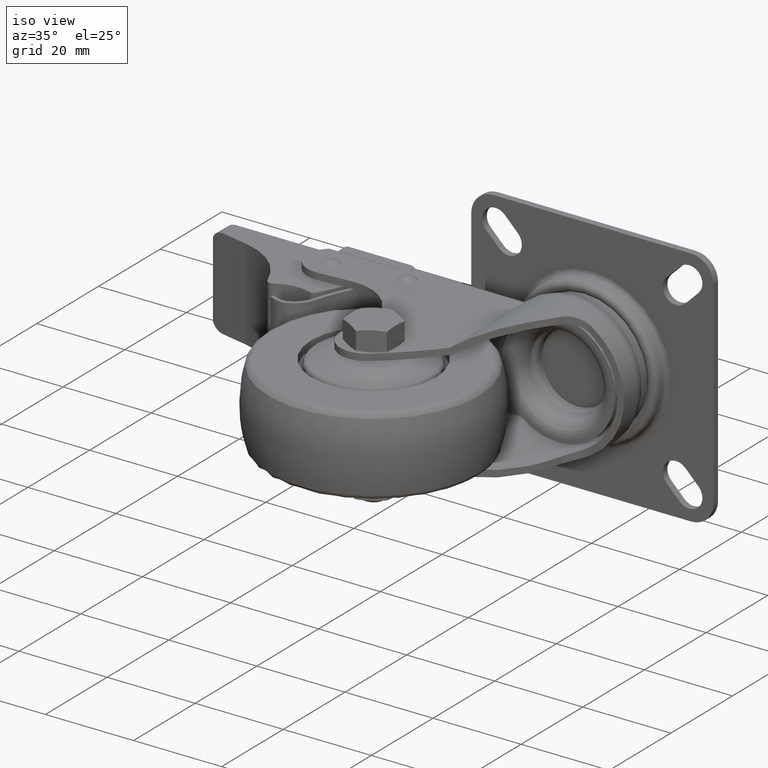
[diagram: clean part render]
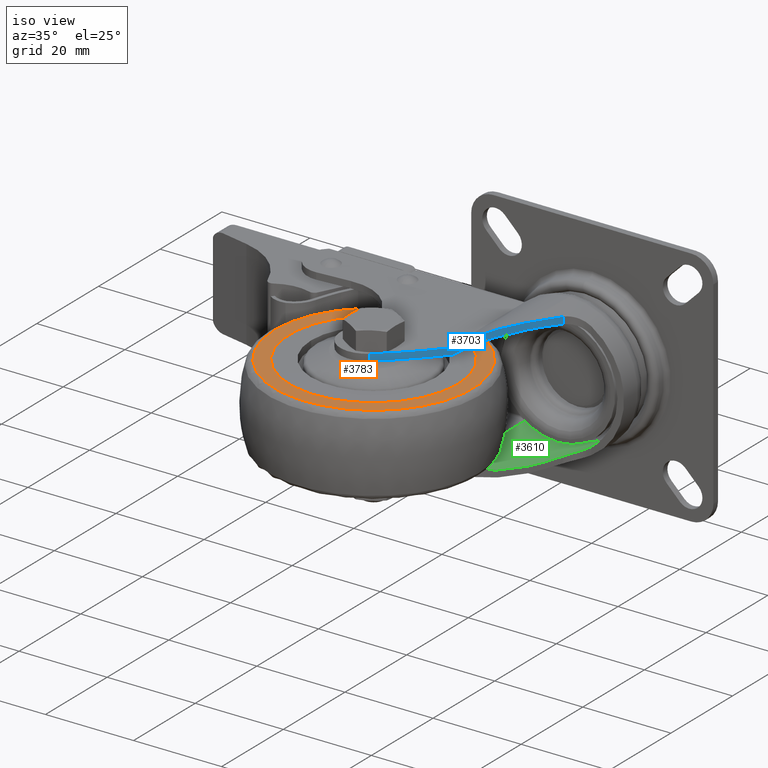
[diagram: same view with three faces highlighted in distinct colors, each labeled with its STEP entity id]
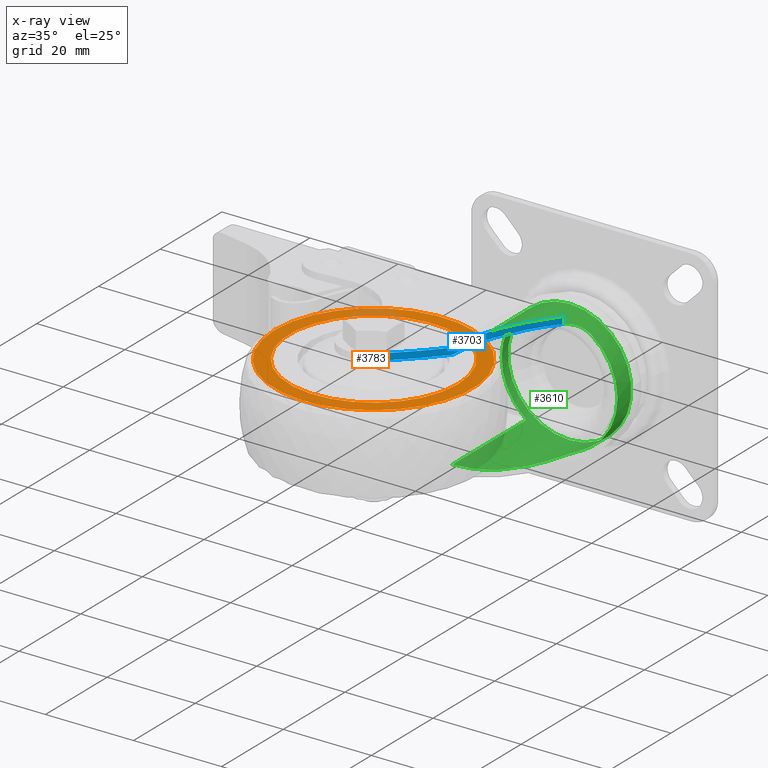
[diagram: x-ray of the same camera — body ghosted, the three highlighted faces saturated]
A machine part, iso view with three faces highlighted in distinct colors.
The next image is the same camera in x-ray (body ghosted, the three faces saturated) — at least one of them is partly hidden behind the body in this view.
Their STEP definitions:

[orange] entity #3783 — the highlighted planar face has unit normal (0, 0, 1).
#256=FACE_BOUND('',#791,.T.);
#332=PLANE('',#4450);
#526=FACE_OUTER_BOUND('',#790,.T.);
#790=EDGE_LOOP('',(#3325));
#791=EDGE_LOOP('',(#3326));
#1501=CIRCLE('',#4449,19.15);
#1502=CIRCLE('',#4451,22.4954541697);
#1844=VERTEX_POINT('',#6945);
#1845=VERTEX_POINT('',#6949);
#2343=EDGE_CURVE('',#1844,#1844,#1501,.T.);
#2345=EDGE_CURVE('',#1845,#1845,#1502,.T.);
#3325=ORIENTED_EDGE('',*,*,#2345,.T.);
#3326=ORIENTED_EDGE('',*,*,#2343,.F.);
#3783=ADVANCED_FACE('',(#526,#256),#332,.T.);
#4449=AXIS2_PLACEMENT_3D('',#6946,#5532,#5533);
#4450=AXIS2_PLACEMENT_3D('',#6948,#5535,#5536);
#4451=AXIS2_PLACEMENT_3D('',#6950,#5537,#5538);
#5532=DIRECTION('center_axis',(1.,0.,0.));
#5533=DIRECTION('ref_axis',(0.,0.,-1.));
#5535=DIRECTION('center_axis',(1.,0.,0.));
#5536=DIRECTION('ref_axis',(0.,0.,-1.));
#5537=DIRECTION('center_axis',(1.,0.,0.));
#5538=DIRECTION('ref_axis',(0.,0.,-1.));
#6945=CARTESIAN_POINT('',(19.5,0.,-19.1499999999996));
#6946=CARTESIAN_POINT('Origin',(19.5,0.,0.));
#6948=CARTESIAN_POINT('Origin',(19.5,19.1499999999996,0.));
#6949=CARTESIAN_POINT('',(19.5,-2.75489859442891E-15,22.4954541697));
#6950=CARTESIAN_POINT('Origin',(19.5,0.,0.));

[blue] entity #3703 — the highlighted cylindrical surface (partial cylindrical patch) has radius 86 mm, axis along (0, 0, 1).
#446=FACE_OUTER_BOUND('',#705,.T.);
#705=EDGE_LOOP('',(#2925,#2926,#2927,#2928,#2929,#2930,#2931,#2932));
#858=B_SPLINE_CURVE_WITH_KNOTS('',3,(#5819,#5820,#5821,#5822,#5823,#5824),
 .UNSPECIFIED.,.F.,.F.,(4,2,4),(8.89543559247743,9.59211510363405,9.63743651702789),
 .UNSPECIFIED.);
#864=B_SPLINE_CURVE_WITH_KNOTS('',3,(#5888,#5889,#5890,#5891,#5892,#5893,
#5894,#5895),.UNSPECIFIED.,.F.,.F.,(4,2,2,4),(7.35914537217771,7.69471753133661,
8.64341631748533,8.89543559247743),.UNSPECIFIED.);
#867=B_SPLINE_CURVE_WITH_KNOTS('',3,(#5922,#5923,#5924,#5925),
 .UNSPECIFIED.,.F.,.F.,(4,4),(-9.08337873086915,-8.34080610701488),
 .UNSPECIFIED.);
#868=B_SPLINE_CURVE_WITH_KNOTS('',3,(#5930,#5931,#5932,#5933,#5934,#5935,
#5936,#5937),.UNSPECIFIED.,.F.,.F.,(4,2,2,4),(-8.34080610701488,-8.24037968967091,
-7.3412376010961,-6.88292561387413),.UNSPECIFIED.);
#911=LINE('',#6092,#1123);
#983=LINE('',#6427,#1195);
#1123=VECTOR('',#4726,1000.);
#1195=VECTOR('',#5132,1000.);
#1316=CIRCLE('',#4088,86.);
#1344=CIRCLE('',#4135,86.);
#1563=VERTEX_POINT('',#5816);
#1564=VERTEX_POINT('',#5818);
#1573=VERTEX_POINT('',#5886);
#1577=VERTEX_POINT('',#5912);
#1578=VERTEX_POINT('',#5921);
#1580=VERTEX_POINT('',#5929);
#1598=VERTEX_POINT('',#6007);
#1627=VERTEX_POINT('',#6091);
#1909=EDGE_CURVE('',#1563,#1564,#858,.T.);
#1919=EDGE_CURVE('',#1573,#1563,#864,.T.);
#1925=EDGE_CURVE('',#1577,#1578,#867,.T.);
#1928=EDGE_CURVE('',#1578,#1580,#868,.T.);
#1949=EDGE_CURVE('',#1598,#1580,#1316,.F.);
#1991=EDGE_CURVE('',#1627,#1598,#911,.T.);
#2002=EDGE_CURVE('',#1627,#1573,#1344,.F.);
#2153=EDGE_CURVE('',#1564,#1577,#983,.T.);
#2925=ORIENTED_EDGE('',*,*,#1925,.F.);
#2926=ORIENTED_EDGE('',*,*,#2153,.F.);
#2927=ORIENTED_EDGE('',*,*,#1909,.F.);
#2928=ORIENTED_EDGE('',*,*,#1919,.F.);
#2929=ORIENTED_EDGE('',*,*,#2002,.F.);
#2930=ORIENTED_EDGE('',*,*,#1991,.T.);
#2931=ORIENTED_EDGE('',*,*,#1949,.T.);
#2932=ORIENTED_EDGE('',*,*,#1928,.F.);
#3572=CYLINDRICAL_SURFACE('',#4290,86.);
#3703=ADVANCED_FACE('',(#446),#3572,.T.);
#4088=AXIS2_PLACEMENT_3D('',#6008,#4635,#4636);
#4135=AXIS2_PLACEMENT_3D('',#6114,#4752,#4753);
#4290=AXIS2_PLACEMENT_3D('',#6426,#5130,#5131);
#4635=DIRECTION('center_axis',(0.,0.,-1.));
#4636=DIRECTION('ref_axis',(-1.,0.,0.));
#4726=DIRECTION('',(0.,0.,-1.));
#4752=DIRECTION('center_axis',(0.,0.,-1.));
#4753=DIRECTION('ref_axis',(-1.,0.,0.));
#5130=DIRECTION('center_axis',(0.,0.,1.));
#5131=DIRECTION('ref_axis',(-1.,0.,0.));
#5132=DIRECTION('',(0.,0.,-1.));
#5816=CARTESIAN_POINT('',(21.9999999993967,18.0284523773647,15.5));
#5818=CARTESIAN_POINT('',(25.5882097250245,24.9657567713356,15.0789505924398));
#5819=CARTESIAN_POINT('Ctrl Pts',(21.9999999987935,18.0284523773647,15.5));
#5820=CARTESIAN_POINT('Ctrl Pts',(23.2085762334202,20.1258085065393,15.5000000000941));
#5821=CARTESIAN_POINT('Ctrl Pts',(24.3441120514485,22.3027059734243,15.3588726951654));
#5822=CARTESIAN_POINT('Ctrl Pts',(25.4538291527719,24.6752887129496,15.1104567030799));
#5823=CARTESIAN_POINT('Ctrl Pts',(25.5212180873941,24.8204200300011,15.0948920231227));
#5824=CARTESIAN_POINT('Ctrl Pts',(25.5882097250251,24.9657567713353,15.0789505924396));
#5886=CARTESIAN_POINT('',(13.1859487180979,5.47293876926752,12.75));
#5888=CARTESIAN_POINT('Ctrl Pts',(13.1859487180983,5.472938769267,12.7500000000003));
#5889=CARTESIAN_POINT('Ctrl Pts',(13.8901971840102,6.30671673526479,13.2368456544119));
#5890=CARTESIAN_POINT('Ctrl Pts',(14.5909695468984,7.16975245467716,13.6342912603984));
#5891=CARTESIAN_POINT('Ctrl Pts',(17.1171580689611,10.4026442962647,14.8561397289304));
#5892=CARTESIAN_POINT('Ctrl Pts',(18.948744096402,13.0111491735249,15.2936079909266));
#5893=CARTESIAN_POINT('Ctrl Pts',(21.1161315443989,16.5214058479391,15.4815140954618));
#5894=CARTESIAN_POINT('Ctrl Pts',(21.5628054185802,17.269747459809,15.499999999966));
#5895=CARTESIAN_POINT('Ctrl Pts',(21.9999999987935,18.0284523773647,15.5));
#5912=CARTESIAN_POINT('',(25.5882097250245,24.9657567713356,13.5323594014215));
#5921=CARTESIAN_POINT('',(21.9999999999772,18.0284523793793,14.));
#5922=CARTESIAN_POINT('Ctrl Pts',(25.5882097250251,24.9657567713353,13.5323594014213));
#5923=CARTESIAN_POINT('Ctrl Pts',(24.4905179096526,22.5843408651569,13.8234208734205));
#5924=CARTESIAN_POINT('Ctrl Pts',(23.2855599977456,20.2594056810471,14.0000000000001));
#5925=CARTESIAN_POINT('Ctrl Pts',(21.9999999999543,18.0284523793793,14.));
#5929=CARTESIAN_POINT('',(13.6670833437505,6.04762798405792,11.25));
#5930=CARTESIAN_POINT('Ctrl Pts',(21.9999999999543,18.0284523793793,14.));
#5931=CARTESIAN_POINT('Ctrl Pts',(21.8261393152057,17.7267355638774,14.));
#5932=CARTESIAN_POINT('Ctrl Pts',(21.650821779533,17.4267274239168,13.9967617249775));
#5933=CARTESIAN_POINT('Ctrl Pts',(19.8921619172795,14.4585095202177,13.9306559983009));
#5934=CARTESIAN_POINT('Ctrl Pts',(18.1979376328538,11.9332152593209,13.6053881372711));
#5935=CARTESIAN_POINT('Ctrl Pts',(15.5807032870526,8.41825910811358,12.4787083790646));
#5936=CARTESIAN_POINT('Ctrl Pts',(14.6156141232378,7.19067943006499,11.9525802605648));
#5937=CARTESIAN_POINT('Ctrl Pts',(13.6670833437509,6.04762798405741,11.2500000000003));
#6007=CARTESIAN_POINT('',(2.66690643386661,-4.99630666106634,11.25));
#6008=CARTESIAN_POINT('Origin',(-52.5140477633581,60.9662758678468,11.25));
#6091=CARTESIAN_POINT('',(2.66690643386661,-4.99630666106634,12.75));
#6092=CARTESIAN_POINT('',(2.66690643386661,-4.99630666106634,50.));
#6114=CARTESIAN_POINT('Origin',(-52.5140477633581,60.9662758678468,12.75));
#6426=CARTESIAN_POINT('Origin',(-52.5140477633581,60.9662758678468,50.));
#6427=CARTESIAN_POINT('',(25.5882097250245,24.9657567713356,50.));

[green] entity #3610 — the highlighted cylindrical surface (bore or boss wall) has radius 14 mm, axis along (0, 1, 0).
#353=FACE_OUTER_BOUND('',#585,.T.);
#585=EDGE_LOOP('',(#2469,#2470,#2471,#2472,#2473,#2474,#2475,#2476,#2477,
#2478,#2479,#2480,#2481,#2482));
#865=B_SPLINE_CURVE_WITH_KNOTS('',3,(#5900,#5901,#5902,#5903,#5904,#5905,
#5906,#5907),.UNSPECIFIED.,.F.,.F.,(4,2,2,4),(0.998982388360361,1.21099806289348,
1.42301373742659,1.56756975527716),.UNSPECIFIED.);
#866=B_SPLINE_CURVE_WITH_KNOTS('',3,(#5913,#5914,#5915,#5916,#5917,#5918,
#5919,#5920),.UNSPECIFIED.,.F.,.F.,(4,2,2,4),(-1.56756975527716,-1.42301373742659,
-1.21099806289348,-0.998982388360361),.UNSPECIFIED.);
#867=B_SPLINE_CURVE_WITH_KNOTS('',3,(#5922,#5923,#5924,#5925),
 .UNSPECIFIED.,.F.,.F.,(4,4),(-9.08337873086915,-8.34080610701488),
 .UNSPECIFIED.);
#868=B_SPLINE_CURVE_WITH_KNOTS('',3,(#5930,#5931,#5932,#5933,#5934,#5935,
#5936,#5937),.UNSPECIFIED.,.F.,.F.,(4,2,2,4),(-8.34080610701488,-8.24037968967091,
-7.3412376010961,-6.88292561387413),.UNSPECIFIED.);
#869=B_SPLINE_CURVE_WITH_KNOTS('',3,(#5941,#5942,#5943,#5944,#5945,#5946,
#5947,#5948,#5949,#5950,#5951,#5952),.UNSPECIFIED.,.F.,.F.,(4,2,2,2,2,4),
(-0.295603639190352,-0.264482918879933,-0.233362198569513,-0.214556292591203,
-0.205153339602048,-0.195750386612893),.UNSPECIFIED.);
#870=B_SPLINE_CURVE_WITH_KNOTS('',3,(#5956,#5957,#5958,#5959,#5960,#5961,
#5962,#5963,#5964,#5965,#5966,#5967),.UNSPECIFIED.,.F.,.F.,(4,2,2,2,2,4),
(-0.391500773225786,-0.382097820236631,-0.372694867247476,-0.353888961269166,
-0.322768240958746,-0.291647520648326),.UNSPECIFIED.);
#871=B_SPLINE_CURVE_WITH_KNOTS('',3,(#5970,#5971,#5972,#5973,#5974,#5975,
#5976,#5977),.UNSPECIFIED.,.F.,.F.,(4,2,2,4),(-4.05488034152121,-3.59656835429924,
-2.69742626572443,-1.8544272452287),.UNSPECIFIED.);
#883=LINE('',#5927,#1095);
#884=LINE('',#5939,#1096);
#885=LINE('',#5969,#1097);
#1095=VECTOR('',#4600,14.);
#1096=VECTOR('',#4603,1000.);
#1097=VECTOR('',#4606,1000.);
#1305=CIRCLE('',#4074,14.);
#1306=CIRCLE('',#4075,14.);
#1307=CIRCLE('',#4076,14.);
#1574=VERTEX_POINT('',#5897);
#1575=VERTEX_POINT('',#5899);
#1576=VERTEX_POINT('',#5910);
#1577=VERTEX_POINT('',#5912);
#1578=VERTEX_POINT('',#5921);
#1579=VERTEX_POINT('',#5926);
#1580=VERTEX_POINT('',#5929);
#1581=VERTEX_POINT('',#5938);
#1582=VERTEX_POINT('',#5940);
#1583=VERTEX_POINT('',#5953);
#1584=VERTEX_POINT('',#5955);
#1585=VERTEX_POINT('',#5968);
#1921=EDGE_CURVE('',#1574,#1575,#865,.T.);
#1923=EDGE_CURVE('',#1576,#1574,#1305,.F.);
#1924=EDGE_CURVE('',#1577,#1576,#866,.T.);
#1925=EDGE_CURVE('',#1577,#1578,#867,.T.);
#1926=EDGE_CURVE('',#1578,#1579,#883,.T.);
#1927=EDGE_CURVE('',#1579,#1579,#1306,.T.);
#1928=EDGE_CURVE('',#1578,#1580,#868,.T.);
#1929=EDGE_CURVE('',#1581,#1580,#884,.T.);
#1930=EDGE_CURVE('',#1582,#1581,#869,.T.);
#1931=EDGE_CURVE('',#1583,#1582,#1307,.F.);
#1932=EDGE_CURVE('',#1584,#1583,#870,.T.);
#1933=EDGE_CURVE('',#1585,#1584,#885,.F.);
#1934=EDGE_CURVE('',#1585,#1575,#871,.T.);
#2469=ORIENTED_EDGE('',*,*,#1923,.F.);
#2470=ORIENTED_EDGE('',*,*,#1924,.F.);
#2471=ORIENTED_EDGE('',*,*,#1925,.T.);
#2472=ORIENTED_EDGE('',*,*,#1926,.T.);
#2473=ORIENTED_EDGE('',*,*,#1927,.F.);
#2474=ORIENTED_EDGE('',*,*,#1926,.F.);
#2475=ORIENTED_EDGE('',*,*,#1928,.T.);
#2476=ORIENTED_EDGE('',*,*,#1929,.F.);
#2477=ORIENTED_EDGE('',*,*,#1930,.F.);
#2478=ORIENTED_EDGE('',*,*,#1931,.F.);
#2479=ORIENTED_EDGE('',*,*,#1932,.F.);
#2480=ORIENTED_EDGE('',*,*,#1933,.F.);
#2481=ORIENTED_EDGE('',*,*,#1934,.T.);
#2482=ORIENTED_EDGE('',*,*,#1921,.F.);
#3541=CYLINDRICAL_SURFACE('',#4073,14.);
#3610=ADVANCED_FACE('',(#353),#3541,.F.);
#4073=AXIS2_PLACEMENT_3D('',#5909,#4596,#4597);
#4074=AXIS2_PLACEMENT_3D('',#5911,#4598,#4599);
#4075=AXIS2_PLACEMENT_3D('',#5928,#4601,#4602);
#4076=AXIS2_PLACEMENT_3D('',#5954,#4604,#4605);
#4596=DIRECTION('center_axis',(0.,1.,0.));
#4597=DIRECTION('ref_axis',(0.,0.,-1.));
#4598=DIRECTION('center_axis',(0.,-1.,0.));
#4599=DIRECTION('ref_axis',(0.,0.,-1.));
#4600=DIRECTION('',(0.,1.,0.));
#4601=DIRECTION('center_axis',(0.,-1.,0.));
#4602=DIRECTION('ref_axis',(0.,0.,-1.));
#4603=DIRECTION('',(0.,-1.,0.));
#4604=DIRECTION('center_axis',(0.,-1.,0.));
#4605=DIRECTION('ref_axis',(0.,0.,-1.));
#4606=DIRECTION('',(0.,-1.,0.));
#5897=CARTESIAN_POINT('',(30.03,27.67,-11.4681777105171));
#5899=CARTESIAN_POINT('',(25.5882097250245,24.9657567713356,-13.5323594014215));
#5900=CARTESIAN_POINT('Ctrl Pts',(30.03,27.67,-11.4681777105171));
#5901=CARTESIAN_POINT('Ctrl Pts',(29.4510872778664,27.67,-11.8735314882554));
#5902=CARTESIAN_POINT('Ctrl Pts',(28.79386808891,27.5623730573173,-12.2612344442239));
#5903=CARTESIAN_POINT('Ctrl Pts',(27.5310177644361,27.0538827774188,-12.8803086409172));
#5904=CARTESIAN_POINT('Ctrl Pts',(26.9273907558285,26.6508796872909,-13.1140049156304));
#5905=CARTESIAN_POINT('Ctrl Pts',(26.1200479393446,25.8215764068173,-13.3844818589785));
#5906=CARTESIAN_POINT('Ctrl Pts',(25.8205313097539,25.4152485330945,-13.4707575369623));
#5907=CARTESIAN_POINT('Ctrl Pts',(25.5882097250245,24.9657567713356,-13.5323594014215));
#5909=CARTESIAN_POINT('Origin',(22.,-10.,0.));
#5910=CARTESIAN_POINT('',(30.03,27.67,11.4681777105171));
#5911=CARTESIAN_POINT('Origin',(22.,27.67,0.));
#5912=CARTESIAN_POINT('',(25.5882097250245,24.9657567713356,13.5323594014215));
#5913=CARTESIAN_POINT('Ctrl Pts',(25.5882097250245,24.9657567713356,13.5323594014215));
#5914=CARTESIAN_POINT('Ctrl Pts',(25.8205313097538,25.4152485330945,13.4707575369623));
#5915=CARTESIAN_POINT('Ctrl Pts',(26.1200479393446,25.8215764068173,13.3844818589785));
#5916=CARTESIAN_POINT('Ctrl Pts',(26.9273907558285,26.6508796872909,13.1140049156304));
#5917=CARTESIAN_POINT('Ctrl Pts',(27.5310177644361,27.0538827774188,12.8803086409172));
#5918=CARTESIAN_POINT('Ctrl Pts',(28.79386808891,27.5623730573173,12.2612344442239));
#5919=CARTESIAN_POINT('Ctrl Pts',(29.4510872778664,27.67,11.8735314882554));
#5920=CARTESIAN_POINT('Ctrl Pts',(30.03,27.67,11.468177710517));
#5921=CARTESIAN_POINT('',(21.9999999999772,18.0284523793793,14.));
#5922=CARTESIAN_POINT('Ctrl Pts',(25.5882097250251,24.9657567713353,13.5323594014213));
#5923=CARTESIAN_POINT('Ctrl Pts',(24.4905179096526,22.5843408651569,13.8234208734205));
#5924=CARTESIAN_POINT('Ctrl Pts',(23.2855599977456,20.2594056810471,14.0000000000001));
#5925=CARTESIAN_POINT('Ctrl Pts',(21.9999999999543,18.0284523793793,14.));
#5926=CARTESIAN_POINT('',(22.,32.16,14.));
#5927=CARTESIAN_POINT('',(22.,-10.,14.));
#5928=CARTESIAN_POINT('Origin',(22.,32.16,0.));
#5929=CARTESIAN_POINT('',(13.6670833437505,6.04762798405792,11.25));
#5930=CARTESIAN_POINT('Ctrl Pts',(21.9999999999543,18.0284523793793,14.));
#5931=CARTESIAN_POINT('Ctrl Pts',(21.8261393152057,17.7267355638774,14.));
#5932=CARTESIAN_POINT('Ctrl Pts',(21.650821779533,17.4267274239168,13.9967617249775));
#5933=CARTESIAN_POINT('Ctrl Pts',(19.8921619172795,14.4585095202177,13.9306559983009));
#5934=CARTESIAN_POINT('Ctrl Pts',(18.1979376328538,11.9332152593209,13.6053881372711));
#5935=CARTESIAN_POINT('Ctrl Pts',(15.5807032870526,8.41825910811358,12.4787083790646));
#5936=CARTESIAN_POINT('Ctrl Pts',(14.6156141232378,7.19067943006499,11.9525802605648));
#5937=CARTESIAN_POINT('Ctrl Pts',(13.6670833437509,6.04762798405741,11.2500000000003));
#5938=CARTESIAN_POINT('',(13.6670833437505,29.57,11.25));
#5939=CARTESIAN_POINT('',(13.6670833437505,-10.,11.25));
#5940=CARTESIAN_POINT('',(13.0313044426739,30.07,10.75));
#5941=CARTESIAN_POINT('Ctrl Pts',(13.0313044426739,30.07,10.75));
#5942=CARTESIAN_POINT('Ctrl Pts',(13.110958667278,30.07,10.8164553014259));
#5943=CARTESIAN_POINT('Ctrl Pts',(13.1982207186527,30.056234484891,10.8876151372379));
#5944=CARTESIAN_POINT('Ctrl Pts',(13.3662199614065,29.9963306815385,11.0213161776806));
#5945=CARTESIAN_POINT('Ctrl Pts',(13.4470207517862,29.9505394614201,11.0839327263195));
#5946=CARTESIAN_POINT('Ctrl Pts',(13.5539169085042,29.852396825332,11.165403861769));
#5947=CARTESIAN_POINT('Ctrl Pts',(13.5935960042754,29.8049732156321,11.1952501289859));
#5948=CARTESIAN_POINT('Ctrl Pts',(13.6361450898216,29.7226618443608,11.2270318612832));
#5949=CARTESIAN_POINT('Ctrl Pts',(13.6475731570324,29.6933660738023,11.2355264753784));
#5950=CARTESIAN_POINT('Ctrl Pts',(13.6630417677652,29.6327064191725,11.2470095457529));
#5951=CARTESIAN_POINT('Ctrl Pts',(13.6670833437505,29.6013431766305,11.25));
#5952=CARTESIAN_POINT('Ctrl Pts',(13.6670833437505,29.57,11.25));
#5953=CARTESIAN_POINT('',(13.0313044426739,30.07,-10.75));
#5954=CARTESIAN_POINT('Origin',(22.,30.07,0.));
#5955=CARTESIAN_POINT('',(13.6670833437505,29.57,-11.25));
#5956=CARTESIAN_POINT('Ctrl Pts',(13.6670833437505,29.57,-11.25));
#5957=CARTESIAN_POINT('Ctrl Pts',(13.6670833437505,29.6013431766305,-11.25));
#5958=CARTESIAN_POINT('Ctrl Pts',(13.6630417677652,29.6327064191725,-11.2470095457529));
#5959=CARTESIAN_POINT('Ctrl Pts',(13.6475731570324,29.6933660738023,-11.2355264753784));
#5960=CARTESIAN_POINT('Ctrl Pts',(13.6361450898216,29.7226618443608,-11.2270318612832));
#5961=CARTESIAN_POINT('Ctrl Pts',(13.5935960042754,29.8049732156321,-11.1952501289859));
#5962=CARTESIAN_POINT('Ctrl Pts',(13.5539169085042,29.852396825332,-11.165403861769));
#5963=CARTESIAN_POINT('Ctrl Pts',(13.4470207517862,29.9505394614201,-11.0839327263195));
#5964=CARTESIAN_POINT('Ctrl Pts',(13.3662199614065,29.9963306815385,-11.0213161776806));
#5965=CARTESIAN_POINT('Ctrl Pts',(13.1982207186527,30.056234484891,-10.8876151372379));
#5966=CARTESIAN_POINT('Ctrl Pts',(13.110958667278,30.07,-10.8164553014259));
#5967=CARTESIAN_POINT('Ctrl Pts',(13.031304442674,30.07,-10.75));
#5968=CARTESIAN_POINT('',(13.6670833437505,6.04762798405792,-11.25));
#5969=CARTESIAN_POINT('',(13.6670833437505,-10.,-11.25));
#5970=CARTESIAN_POINT('Ctrl Pts',(13.6670833437509,6.04762798405741,-11.2500000000003));
#5971=CARTESIAN_POINT('Ctrl Pts',(14.6156141232378,7.190679430065,-11.9525802605648));
#5972=CARTESIAN_POINT('Ctrl Pts',(15.5807032870527,8.4182591081136,-12.4787083790646));
#5973=CARTESIAN_POINT('Ctrl Pts',(18.1979376328538,11.9332152593209,-13.6053881372711));
#5974=CARTESIAN_POINT('Ctrl Pts',(19.8921619172796,14.4585095202178,-13.9306559983009));
#5975=CARTESIAN_POINT('Ctrl Pts',(22.957318156959,19.631796193511,-14.0458712169741));
#5976=CARTESIAN_POINT('Ctrl Pts',(24.3420656636883,22.2622772996857,-13.8627841342437));
#5977=CARTESIAN_POINT('Ctrl Pts',(25.5882097250251,24.9657567713353,-13.5323594014213));